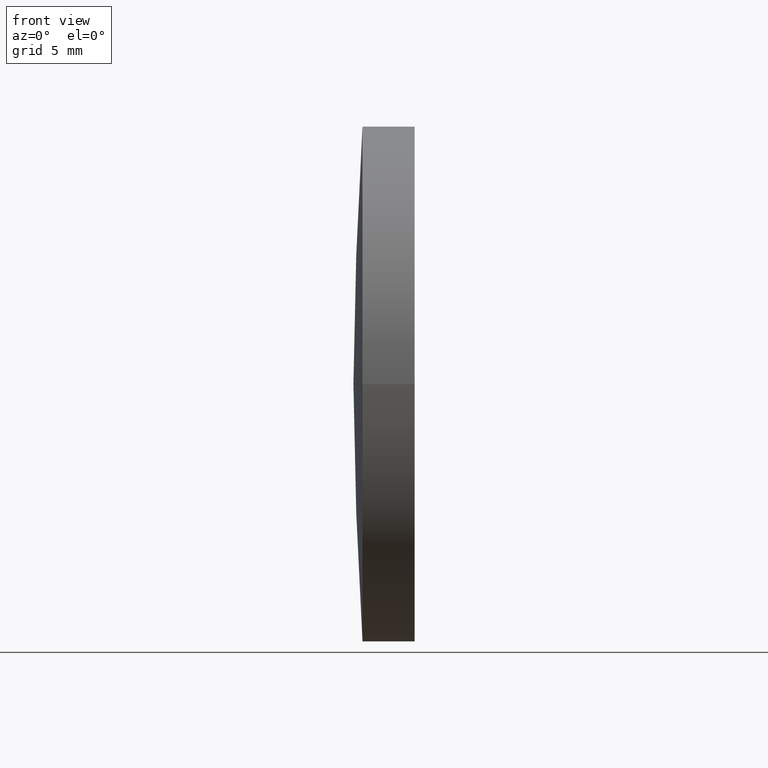
[diagram: clean part render]
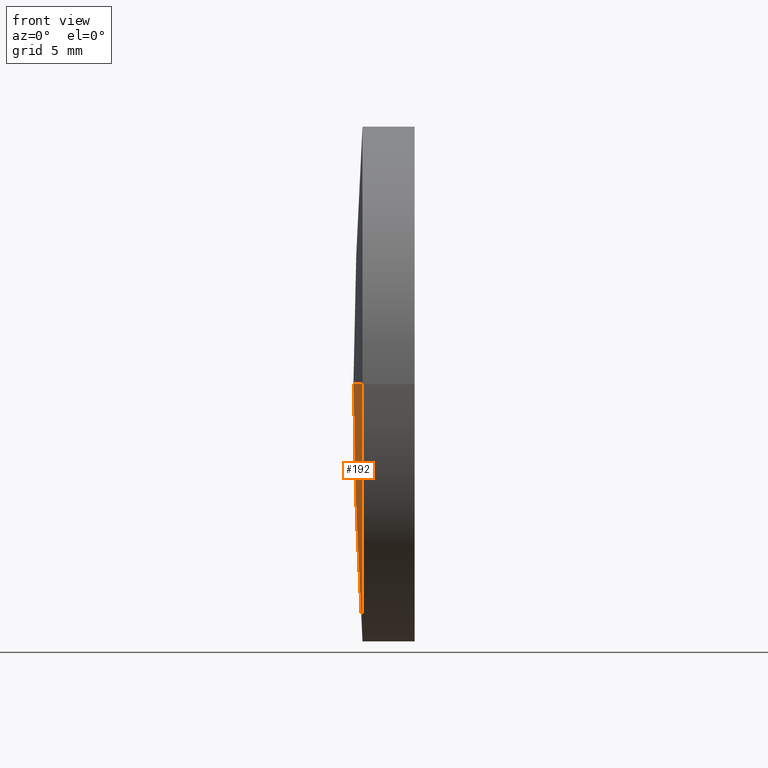
[diagram: same view with one face highlighted and labeled with its STEP entity id]
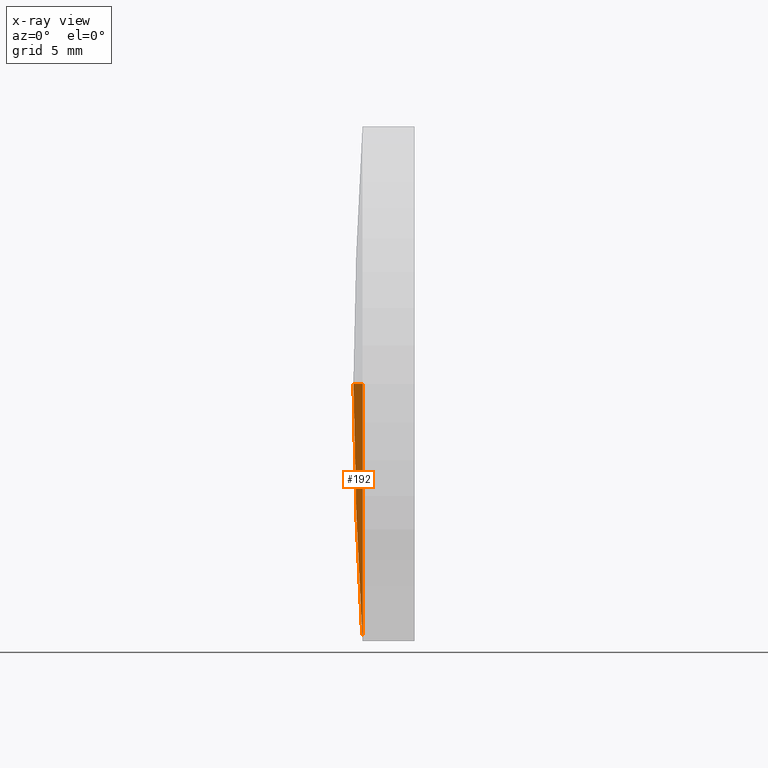
[diagram: x-ray of the same camera — body ghosted, the highlighted face saturated]
A machine part, front view. The second image highlights one B-rep face of the part: STEP entity #192.
The next image is the same camera in x-ray: the body ghosted, the highlighted face saturated — about 0% of this face is hidden behind the body in this view.
In plain terms, the highlighted spherical surface has radius 178 mm.
Its self-contained STEP definition (entity closure, byte-faithful):
#8 = DIRECTION ( 'NONE',  ( -0.0000000000000000000, 0.0000000000000000000, 1.000000000000000000 ) ) ;
#10 = SPHERICAL_SURFACE ( 'NONE', #100, 178.0000000000000600 ) ;
#16 = VERTEX_POINT ( 'NONE', #128 ) ;
#21 = DIRECTION ( 'NONE',  ( -0.0000000000000000000, 0.0000000000000000000, -1.000000000000000000 ) ) ;
#23 = EDGE_CURVE ( 'NONE', #16, #178, #99, .T. ) ;
#27 = EDGE_CURVE ( 'NONE', #171, #178, #79, .T. ) ;
#45 = DIRECTION ( 'NONE',  ( -6.237208003512113900E-016, 1.000000000000000000, 0.0000000000000000000 ) ) ;
#46 = CARTESIAN_POINT ( 'NONE',  ( 300.6121936984948200, 65.21684047094029800, 0.0000000000000000000 ) ) ;
#51 = DIRECTION ( 'NONE',  ( 1.110223024625156100E-015, -1.000000000000000000, 0.0000000000000000000 ) ) ;
#62 = DIRECTION ( 'NONE',  ( 0.0000000000000000000, 1.000000000000000000, 1.224646799147353200E-016 ) ) ;
#77 = CARTESIAN_POINT ( 'NONE',  ( 122.6121936984947900, 65.21684047094018400, 0.0000000000000000000 ) ) ;
#78 = EDGE_CURVE ( 'NONE', #171, #16, #133, .T. ) ;
#79 = CIRCLE ( 'NONE', #174, 178.0000000000000600 ) ;
#85 = FACE_OUTER_BOUND ( 'NONE', #101, .T. ) ;
#88 = CARTESIAN_POINT ( 'NONE',  ( 123.0516406468668300, 77.71684047094032600, 0.0000000000000000000 ) ) ;
#99 = CIRCLE ( 'NONE', #165, 178.0000000000000600 ) ;
#100 = AXIS2_PLACEMENT_3D ( 'NONE', #46, #21, #45 ) ;
#101 = EDGE_LOOP ( 'NONE', ( #140, #166, #167 ) ) ;
#109 = DIRECTION ( 'NONE',  ( -8.496118506040342700E-032, 1.224646799147353200E-016, -1.000000000000000000 ) ) ;
#114 = CARTESIAN_POINT ( 'NONE',  ( 123.0516406468668300, 65.21684047094032600, 0.0000000000000000000 ) ) ;
#128 = CARTESIAN_POINT ( 'NONE',  ( 123.0516406468668300, 52.71684047094017700, -1.530808498934191500E-015 ) ) ;
#133 = CIRCLE ( 'NONE', #176, 12.50000000000000400 ) ;
#140 = ORIENTED_EDGE ( 'NONE', *, *, #78, .T. ) ;
#148 = DIRECTION ( 'NONE',  ( -1.000000000000000000, -6.937607244762875000E-016, -0.0000000000000000000 ) ) ;
#158 = DIRECTION ( 'NONE',  ( 1.000000000000000000, 0.0000000000000000000, 0.0000000000000000000 ) ) ;
#165 = AXIS2_PLACEMENT_3D ( 'NONE', #187, #109, #62 ) ;
#166 = ORIENTED_EDGE ( 'NONE', *, *, #23, .T. ) ;
#167 = ORIENTED_EDGE ( 'NONE', *, *, #27, .F. ) ;
#171 = VERTEX_POINT ( 'NONE', #88 ) ;
#174 = AXIS2_PLACEMENT_3D ( 'NONE', #185, #8, #158 ) ;
#176 = AXIS2_PLACEMENT_3D ( 'NONE', #114, #148, #51 ) ;
#178 = VERTEX_POINT ( 'NONE', #77 ) ;
#185 = CARTESIAN_POINT ( 'NONE',  ( 300.6121936984948200, 65.21684047094029800, 0.0000000000000000000 ) ) ;
#187 = CARTESIAN_POINT ( 'NONE',  ( 300.6121936984948200, 65.21684047094029800, 0.0000000000000000000 ) ) ;
#192 = ADVANCED_FACE ( 'NONE', ( #85 ), #10, .T. ) ;